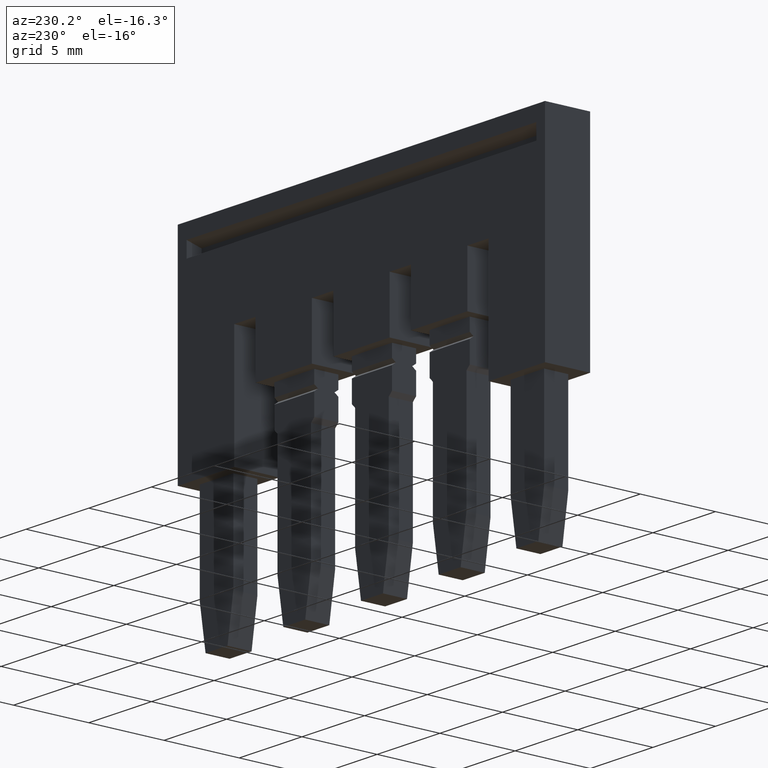
[diagram: clean part render]
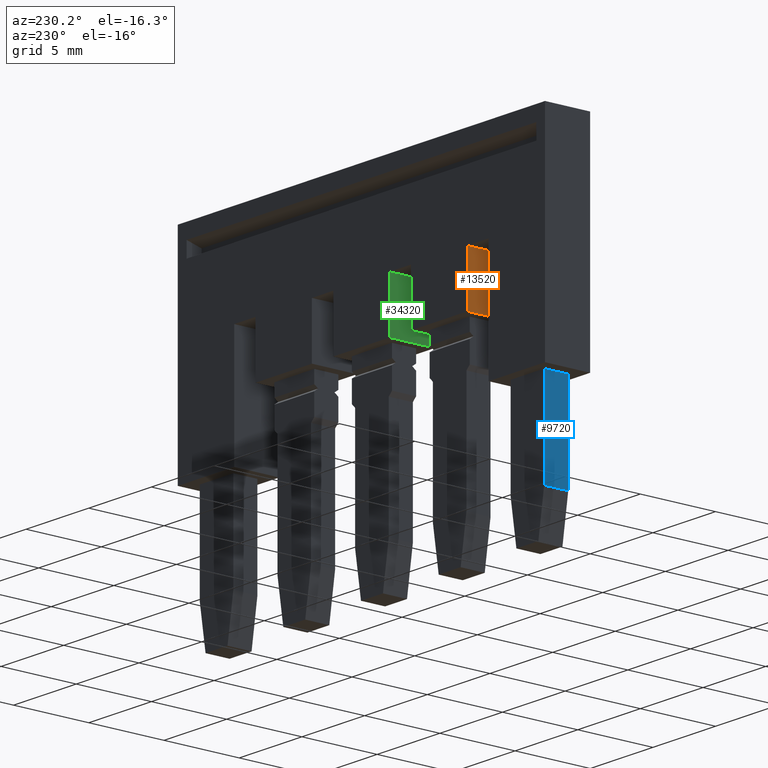
[diagram: same view with three faces highlighted in distinct colors, each labeled with its STEP entity id]
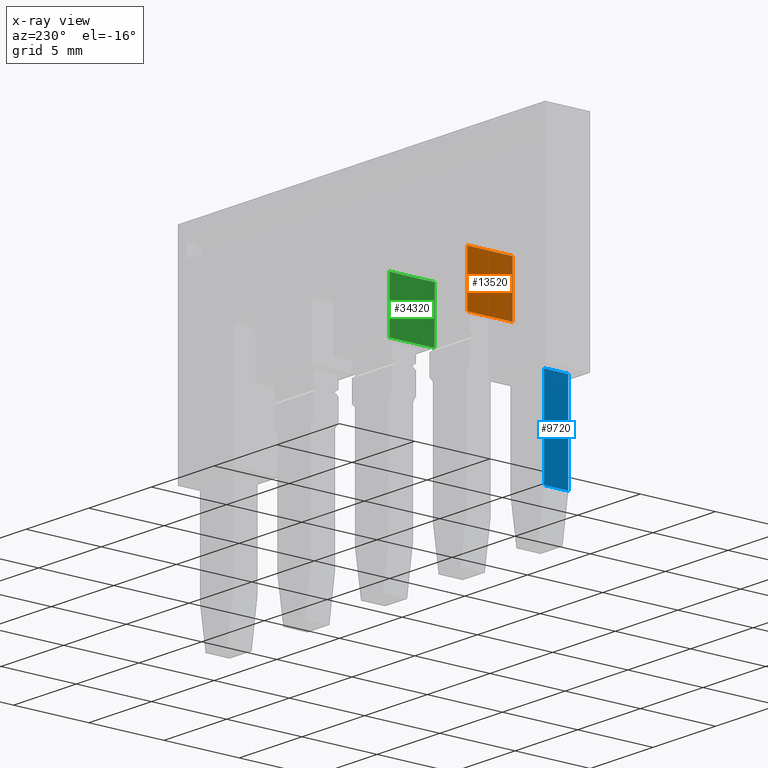
[diagram: x-ray of the same camera — body ghosted, the three highlighted faces saturated]
A machine part, auxiliary view with three faces highlighted in distinct colors.
The next image is the same camera in x-ray (body ghosted, the three faces saturated) — at least one of them is partly hidden behind the body in this view.
Their STEP definitions:

[orange] entity #13520 — the highlighted planar face has unit normal (-1, 0, 0).
#4210=CARTESIAN_POINT('',(2.60716722168534,-15.4750000000039,
54.5099999999949));
#4220=VERTEX_POINT('',#4210);
#4370=CARTESIAN_POINT('',(5.60716722168535,-15.4750000000039,
54.5099999999949));
#4380=VERTEX_POINT('',#4370);
#4410=CARTESIAN_POINT('',(5.60716722168533,-15.4750000000039,
54.5099999999949));
#4420=DIRECTION('',(-1.,0.,-2.13821176807375E-50));
#4430=VECTOR('',#4420,1.);
#4440=LINE('',#4410,#4430);
#4450=EDGE_CURVE('',#4380,#4220,#4440,.T.);
#6570=CARTESIAN_POINT('',(5.60716722168535,-18.9750000000039,
54.5099999999949));
#6580=VERTEX_POINT('',#6570);
#6610=CARTESIAN_POINT('',(5.60716722168535,-3.48876483258209E-12,
54.5099999999949));
#6620=DIRECTION('',(0.,1.,0.));
#6630=VECTOR('',#6620,1.);
#6640=LINE('',#6610,#6630);
#6650=EDGE_CURVE('',#6580,#4380,#6640,.T.);
#13290=CARTESIAN_POINT('',(5.60716722168533,-11.5750000000039,
54.5099999999949));
#13300=DIRECTION('',(-2.13821176807375E-50,0.,1.));
#13310=DIRECTION('',(0.,1.,0.));
#13320=AXIS2_PLACEMENT_3D('',#13290,#13300,#13310);
#13330=PLANE('',#13320);
#13340=CARTESIAN_POINT('',(2.60716722168534,-3.48876483258209E-12,
54.5099999999949));
#13350=DIRECTION('',(0.,-1.,0.));
#13360=VECTOR('',#13350,1.);
#13370=LINE('',#13340,#13360);
#13380=CARTESIAN_POINT('',(2.60716722168534,-18.9750000000039,
54.5099999999949));
#13390=VERTEX_POINT('',#13380);
#13400=EDGE_CURVE('',#4220,#13390,#13370,.T.);
#13410=ORIENTED_EDGE('',*,*,#13400,.T.);
#13420=ORIENTED_EDGE('',*,*,#4450,.T.);
#13430=ORIENTED_EDGE('',*,*,#6650,.T.);
#13440=CARTESIAN_POINT('',(-1.77635683940025E-14,-18.9750000000039,
54.5099999999949));
#13450=DIRECTION('',(1.,0.,2.13821176807375E-50));
#13460=VECTOR('',#13450,1.);
#13470=LINE('',#13440,#13460);
#13480=EDGE_CURVE('',#13390,#6580,#13470,.T.);
#13490=ORIENTED_EDGE('',*,*,#13480,.T.);
#13500=EDGE_LOOP('',(#13490,#13430,#13420,#13410));
#13510=FACE_OUTER_BOUND('',#13500,.T.);
#13520=ADVANCED_FACE('',(#13510),#13330,.T.);

[blue] entity #9720 — the highlighted planar face has unit normal (-1, 0, 0).
#1140=CARTESIAN_POINT('',(4.90716722169508,-23.0750000000039,
59.7999999999925));
#1150=VERTEX_POINT('',#1140);
#1180=CARTESIAN_POINT('',(5.60716722168534,-23.0750000000039,
59.7999999999925));
#1190=DIRECTION('',(-1.,0.,-1.22464679914735E-16));
#1200=VECTOR('',#1190,1.);
#1210=LINE('',#1180,#1200);
#1220=CARTESIAN_POINT('',(3.30716722169509,-23.0750000000039,
59.8000000009617));
#1230=VERTEX_POINT('',#1220);
#1240=EDGE_CURVE('',#1150,#1230,#1210,.T.);
#1850=CARTESIAN_POINT('',(3.30716722169509,-29.2807420565167,
59.7999999999925));
#1860=VERTEX_POINT('',#1850);
#2140=CARTESIAN_POINT('',(3.30716722167559,-14.7145836324908,
59.8000000009629));
#2150=DIRECTION('',(-3.01423523277342E-27,1.,1.44925274306014E-13));
#2160=VECTOR('',#2150,1.);
#2170=LINE('',#2140,#2160);
#2180=EDGE_CURVE('',#1860,#1230,#2170,.T.);
#3860=CARTESIAN_POINT('',(5.60716722168534,-29.2807420565167,
59.7999999999925));
#3870=DIRECTION('',(1.,-4.55169768507567E-15,1.22464679914736E-16));
#3880=VECTOR('',#3870,1.);
#3890=LINE('',#3860,#3880);
#3900=CARTESIAN_POINT('',(4.90716722169508,-29.2807420565167,
59.7999999999925));
#3910=VERTEX_POINT('',#3900);
#3920=EDGE_CURVE('',#1860,#3910,#3890,.T.);
#9560=CARTESIAN_POINT('',(4.90716722169507,-21.7850000000019,
59.7999999999925));
#9570=DIRECTION('',(-1.22464679914735E-16,6.12323399573677E-17,1.));
#9580=DIRECTION('',(-7.49879891330929E-33,-1.,6.12323399573677E-17));
#9590=AXIS2_PLACEMENT_3D('',#9560,#9570,#9580);
#9600=PLANE('',#9590);
#9610=ORIENTED_EDGE('',*,*,#1240,.T.);
#9620=CARTESIAN_POINT('',(4.90716722169509,-14.7145836302107,
59.7999999999925));
#9630=DIRECTION('',(-1.22464679914735E-16,-1.,6.12323399573676E-17));
#9640=VECTOR('',#9630,1.);
#9650=LINE('',#9620,#9640);
#9660=EDGE_CURVE('',#1150,#3910,#9650,.T.);
#9670=ORIENTED_EDGE('',*,*,#9660,.F.);
#9680=ORIENTED_EDGE('',*,*,#3920,.T.);
#9690=ORIENTED_EDGE('',*,*,#2180,.F.);
#9700=EDGE_LOOP('',(#9690,#9680,#9670,#9610));
#9710=FACE_OUTER_BOUND('',#9700,.T.);
#9720=ADVANCED_FACE('',(#9710),#9600,.T.);

[green] entity #34320 — the highlighted planar face has unit normal (-1, 0, 0).
#6250=CARTESIAN_POINT('',(5.60716722168535,-18.9750000000039,
48.3099999999949));
#6260=VERTEX_POINT('',#6250);
#6290=CARTESIAN_POINT('',(5.60716722168535,-3.48876483258209E-12,
48.3099999999949));
#6300=DIRECTION('',(0.,-1.,0.));
#6310=VECTOR('',#6300,1.);
#6320=LINE('',#6290,#6310);
#6330=CARTESIAN_POINT('',(5.60716722168535,-15.4750000000039,
48.3099999999949));
#6340=VERTEX_POINT('',#6330);
#6350=EDGE_CURVE('',#6340,#6260,#6320,.T.);
#19030=CARTESIAN_POINT('',(2.60716722168534,-15.4750000000039,
48.3099999999949));
#19040=VERTEX_POINT('',#19030);
#19070=CARTESIAN_POINT('',(2.60716722168534,-3.48876483258209E-12,
48.3099999999949));
#19080=DIRECTION('',(0.,-1.,0.));
#19090=VECTOR('',#19080,1.);
#19100=LINE('',#19070,#19090);
#19110=CARTESIAN_POINT('',(2.60716722168534,-18.9750000000039,
48.3099999999949));
#19120=VERTEX_POINT('',#19110);
#19130=EDGE_CURVE('',#19040,#19120,#19100,.T.);
#34000=CARTESIAN_POINT('',(5.60716722168533,-15.4750000000039,
48.3099999999949));
#34010=DIRECTION('',(-1.,0.,-2.13821176807375E-50));
#34020=VECTOR('',#34010,1.);
#34030=LINE('',#34000,#34020);
#34040=EDGE_CURVE('',#6340,#19040,#34030,.T.);
#34160=CARTESIAN_POINT('',(5.60716722168533,-11.5750000000039,
48.3099999999949));
#34170=DIRECTION('',(-2.13821176807375E-50,0.,1.));
#34180=DIRECTION('',(0.,1.,0.));
#34190=AXIS2_PLACEMENT_3D('',#34160,#34170,#34180);
#34200=PLANE('',#34190);
#34210=ORIENTED_EDGE('',*,*,#19130,.T.);
#34220=ORIENTED_EDGE('',*,*,#34040,.T.);
#34230=ORIENTED_EDGE('',*,*,#6350,.F.);
#34240=CARTESIAN_POINT('',(-1.77635683940025E-14,-18.9750000000039,
48.3099999999949));
#34250=DIRECTION('',(1.,0.,2.13821176807375E-50));
#34260=VECTOR('',#34250,1.);
#34270=LINE('',#34240,#34260);
#34280=EDGE_CURVE('',#19120,#6260,#34270,.T.);
#34290=ORIENTED_EDGE('',*,*,#34280,.T.);
#34300=EDGE_LOOP('',(#34290,#34230,#34220,#34210));
#34310=FACE_OUTER_BOUND('',#34300,.T.);
#34320=ADVANCED_FACE('',(#34310),#34200,.T.);